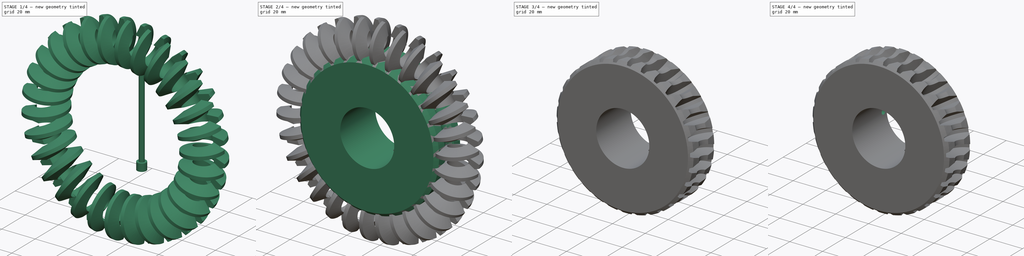
[diagram: build sequence overview — one tinted view per stage of 4, left to right]
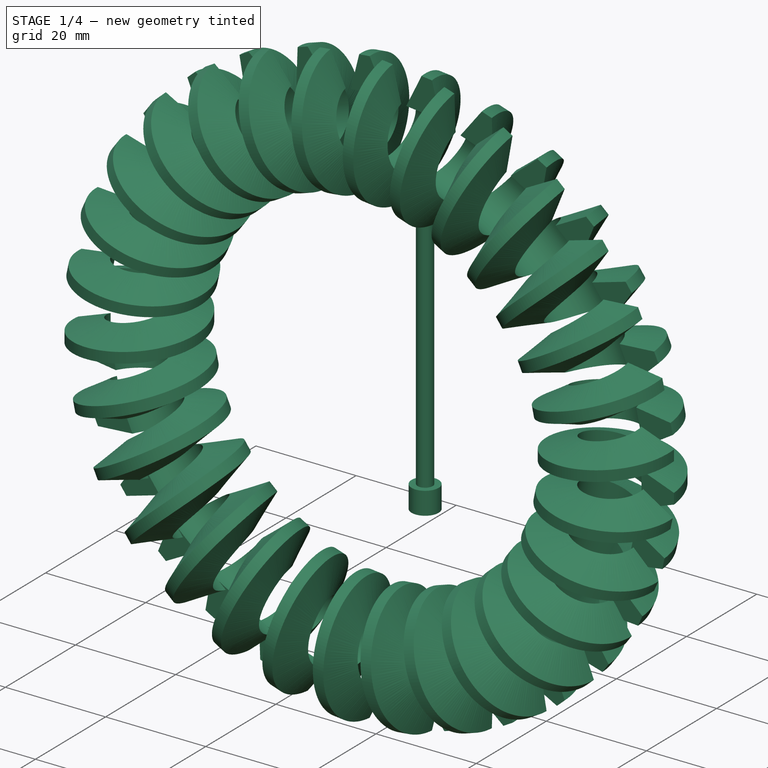
[diagram: stage 1 of 4 — iso view after this stage's code; geometry added in this stage tinted green]
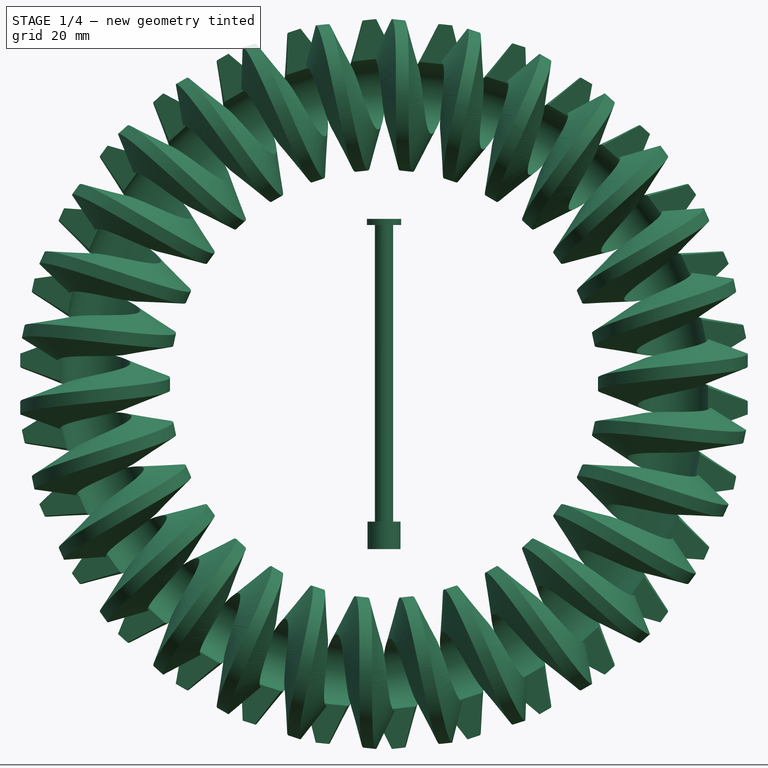
[diagram: stage 1 of 4 — front view after this stage's code; geometry added in this stage tinted green]
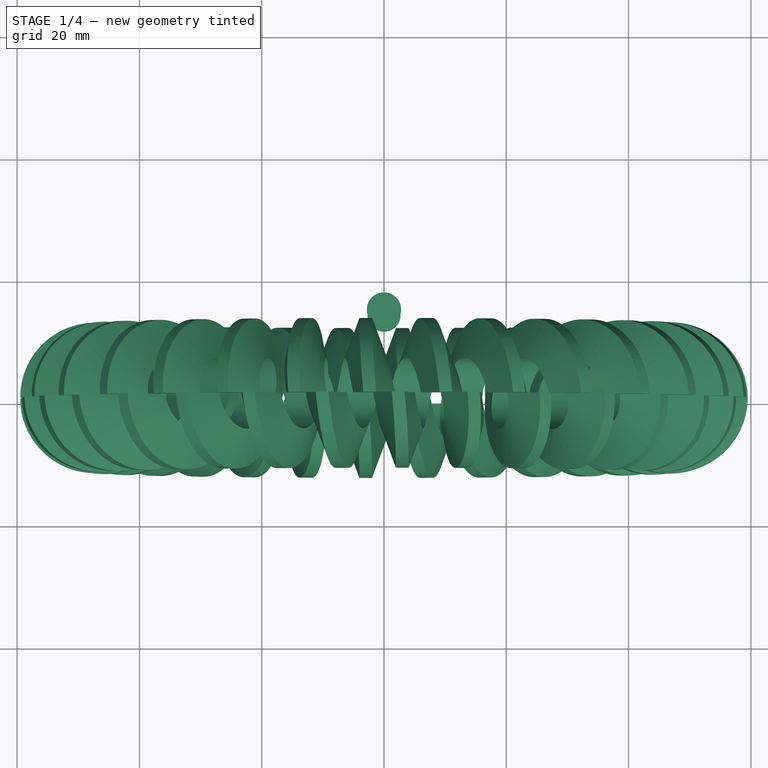
[diagram: stage 1 of 4 — top view after this stage's code; geometry added in this stage tinted green]
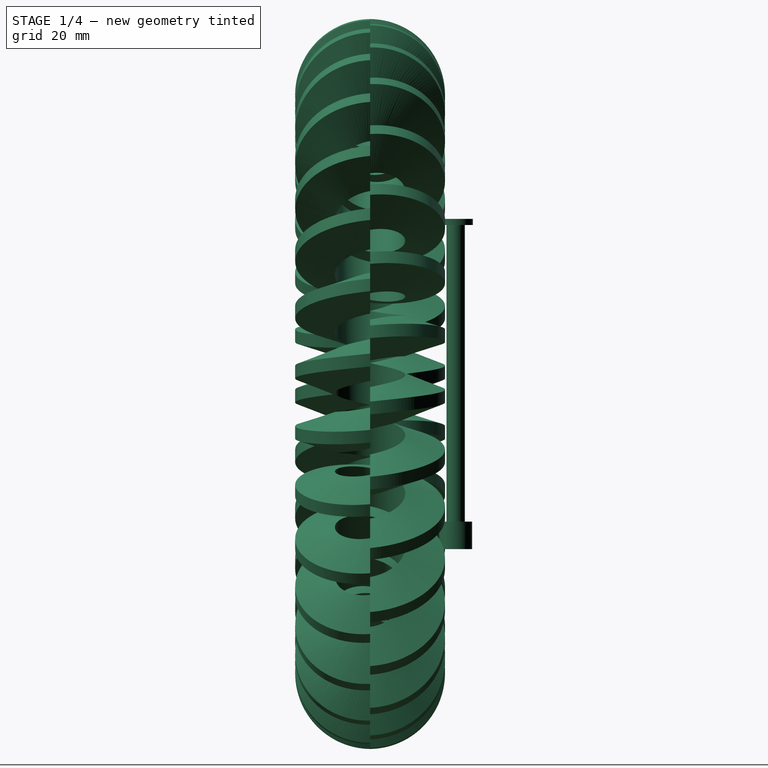
[diagram: stage 1 of 4 — right view after this stage's code; geometry added in this stage tinted green]
FCSTD DOCUMENT  (FreeCAD 0.15R4671 (Git))
Label: axis_gear
License: CC-BY 3.0
LicenseURL: http://creativecommons.org/licenses/by/3.0/
objects: Sketcher::SketchObject×10, PartDesign::Pocket×5, PartDesign::Revolution×2, Part::Cut×2, Part::Helix×1, Part::Sweep×1, PartDesign::Chamfer×1, Part::FeaturePython×1
note: 30 computed .brp shape members not serialized (recipe doc carries the construction recipe); baked Part::Feature solids carry a one-line shape summary decoded from their .brp

FEATURE [Part::Helix] Helix  label="coronaCircle"
  Angle = 0
  Height = 7.85
  LocalCoord = 0
  Pitch = 7.85
  Placement = pos=(47.25,0,-3.925) rot=(0,0,1;0rad)
  Radius = 9.75
  Style = 1
FEATURE [Sketcher::SketchObject] Sketch002  label="helpCircle"
  sketch-geometry (1):
    g0: Circle CenterX=47.25 CenterY=0 CenterZ=0 NormalX=0 NormalY=0 NormalZ=1 Radius=12.25
  constraints (3):
    c: PointOnObject(g0,g-1)
    c: Radius(g0) = 12.25
    c: DistanceX(g-1,g0) = 47.25
FEATURE [Sketcher::SketchObject] Sketch003  label="coronaCutter"
  Placement = pos=(0,0,0) rot=(1,0,0;1.5708rad)
  sketch-geometry (6):
    g0: LineSegment StartX=53 StartY=-7.34338 StartZ=0 EndX=53 EndY=-0.506619 EndZ=0
    g1: LineSegment StartX=53 StartY=-0.506619 StartZ=0 EndX=59.5 EndY=-2.87243 EndZ=0
    g2: LineSegment StartX=59.5 StartY=-2.87243 StartZ=0 EndX=59.5 EndY=-4.97757 EndZ=0
    g3: LineSegment StartX=59.5 StartY=-4.97757 StartZ=0 EndX=53 EndY=-7.34338 EndZ=0
    g4: LineSegment [constr] StartX=53 StartY=-3.925 StartZ=0 EndX=59.5 EndY=-3.925 EndZ=0
    g5: LineSegment [constr] StartX=57 StartY=-1.9625 StartZ=0 EndX=57 EndY=-5.8875 EndZ=0
  constraints (19):
    c: Vertical(g0)
    c: Coincident(g0,g1)
    c: Coincident(g1,g2)
    c: Vertical(g2)
    c: Coincident(g2,g3)
    c: Coincident(g0,g3)
    c: PointOnObject(g4,g0)
    c: PointOnObject(g4,g2)
    c: Symmetric(g0,g0,g4)
    c: Symmetric(g1,g2,g4)
    c: Vertical(g5)
    c: PointOnObject(g5,g3)
    c: PointOnObject(g5,g1)
    c: DistanceX(g-1,g5) = 57
    c: DistanceY(g-1,g4) = -3.925
    c: Angle(g-1,g1) = 2.79253
    c: DistanceY(g5) = -3.925
    c: DistanceX(g5,g1) = 2.5
    c: DistanceX(g0,g5) = 4
FEATURE [Part::Sweep] Sweep  label="cutterSweep"
  Frenet = true
  Sections = -> [Sketch003]
  Solid = true
  Spine = -> Helix [Edge1]
  Transition = 1
FEATURE [Sketcher::SketchObject] Sketch004  label="boltCut"
  Placement = pos=(0,14,0) rot=(-1,0,0;1.5708rad)
  sketch-geometry (8):
    g0: LineSegment StartX=0 StartY=27 StartZ=0 EndX=2.7 EndY=27 EndZ=0
    g1: LineSegment StartX=2.7 StartY=27 StartZ=0 EndX=2.7 EndY=22.5 EndZ=0
    g2: LineSegment StartX=2.7 StartY=22.5 StartZ=0 EndX=1.5 EndY=22.5 EndZ=0
    g3: LineSegment StartX=1.5 StartY=22.5 StartZ=0 EndX=1.5 EndY=-26 EndZ=0
    g4: LineSegment StartX=0 StartY=-27 StartZ=0 EndX=0 EndY=27 EndZ=0
    g5: LineSegment StartX=1.5 StartY=-26 StartZ=0 EndX=2.8057 EndY=-26 EndZ=0
    g6: LineSegment StartX=2.8057 StartY=-26 StartZ=0 EndX=2.8057 EndY=-27 EndZ=0
    g7: LineSegment StartX=2.8057 StartY=-27 StartZ=0 EndX=0 EndY=-27 EndZ=0
  constraints (23):
    c: PointOnObject(g0,g-2)
    c: Horizontal(g0)
    c: Coincident(g0,g1)
    c: Vertical(g1)
    c: Coincident(g1,g2)
    c: Horizontal(g2)
    c: Coincident(g2,g3)
    c: Vertical(g3)
    c: Coincident(g4,g0)
    c: Vertical(g4)
    c: DistanceY(g-1,g0) = 27
    c: Distance(g1) = 4.5
    c: Distance(g0) = 2.7
    c: Coincident(g3,g5)
    c: Horizontal(g5)
    c: Coincident(g5,g6)
    c: Vertical(g6)
    c: Coincident(g6,g7)
    c: PointOnObject(g7,g-2)
    c: Coincident(g4,g7)
    c: Horizontal(g7)
    c: DistanceY(g-1,g3) = -26
    c: DistanceY(g6) = -1
FEATURE [PartDesign::Revolution] Revolution001  label="bolt"
  Angle = 360
  Axis = (0,0,-1)
  Base = (0,14,0)
  Placement = pos=(0,14,0) rot=(-1,0,0;1.5708rad)
  ReferenceAxis = -> Sketch004 [V_Axis]
  Reversed = true
  Sketch = -> Sketch004
FEATURE [Part::FeaturePython] Array  label="cutterArray"  # Draft array (typed FeaturePython)
  Angle = 360
  ArrayType = 1
  Axis = (0,1,0)
  Base = -> Sweep
  Center = (0,0,0)
  IntervalX = (1,0,0)
  IntervalY = (0,1,0)
  IntervalZ = (0,0,1)
  NumberPolar = 30
  NumberX = 2
  NumberY = 2
  NumberZ = 1
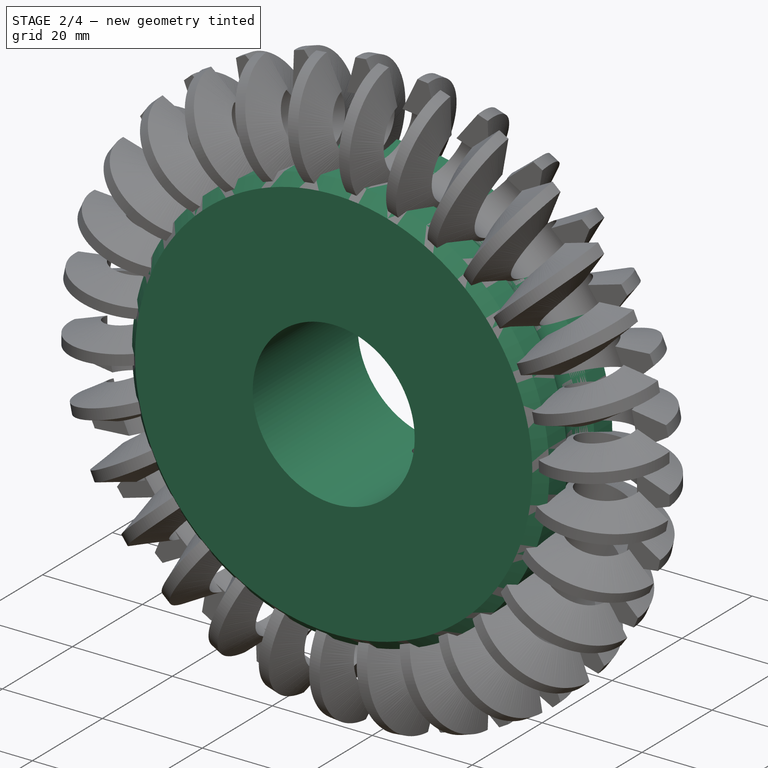
[diagram: stage 2 of 4 — iso view after this stage's code; geometry added in this stage tinted green]
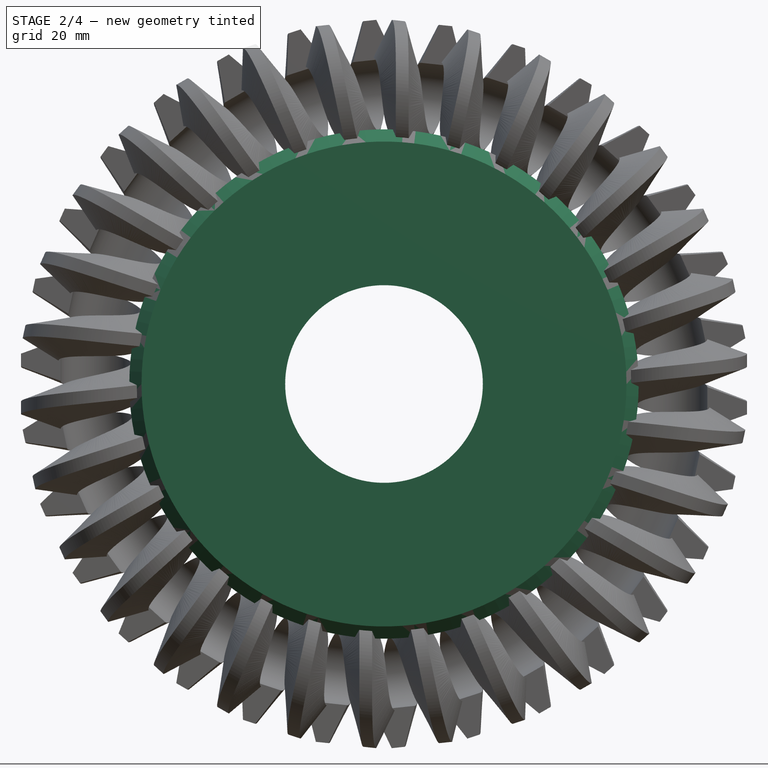
[diagram: stage 2 of 4 — front view after this stage's code; geometry added in this stage tinted green]
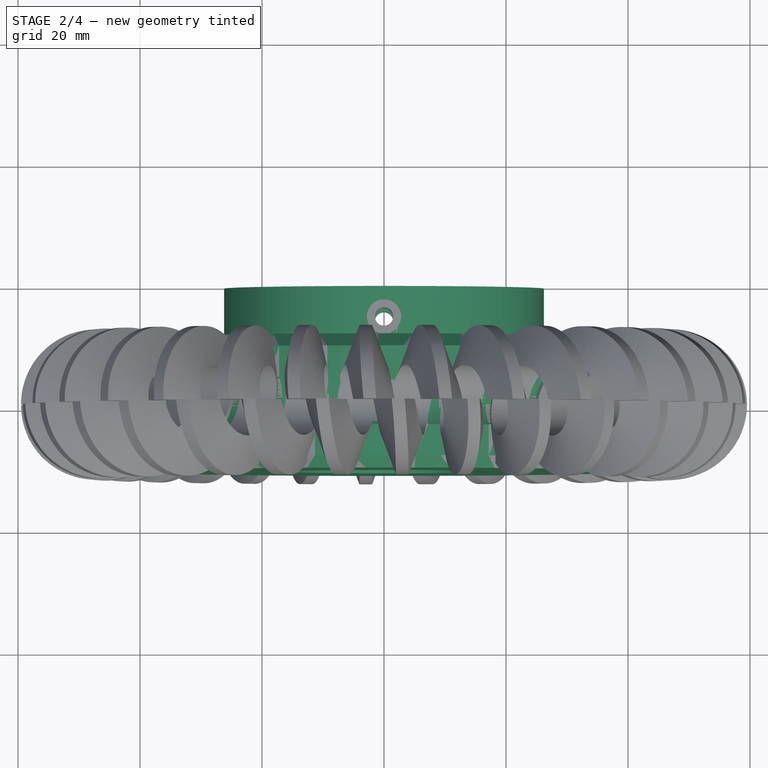
[diagram: stage 2 of 4 — top view after this stage's code; geometry added in this stage tinted green]
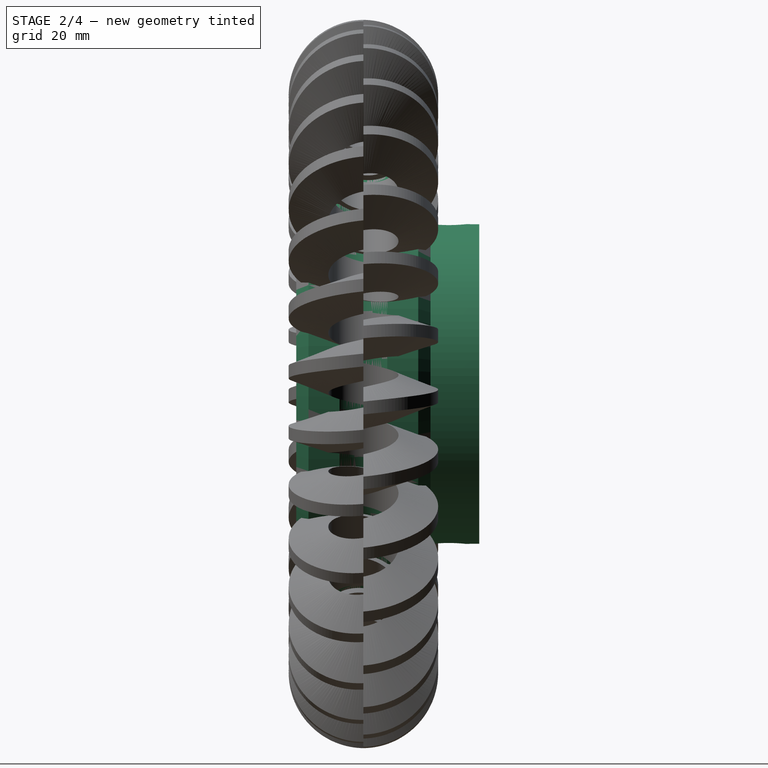
[diagram: stage 2 of 4 — right view after this stage's code; geometry added in this stage tinted green]
FEATURE [Sketcher::SketchObject] Sketch  label="coronaProfile"
  sketch-geometry (8):
    g0: LineSegment StartX=16.2 StartY=-11 StartZ=0 EndX=41.75 EndY=-11 EndZ=0
    g1: LineSegment StartX=41.75 StartY=11 StartZ=0 EndX=26.2 EndY=11 EndZ=0
    g2: LineSegment StartX=26.2 StartY=11 StartZ=0 EndX=26.2 EndY=19 EndZ=0
    g3: LineSegment StartX=26.2 StartY=19 StartZ=0 EndX=16.2 EndY=19 EndZ=0
    g4: LineSegment StartX=16.2 StartY=19 StartZ=0 EndX=16.2 EndY=-11 EndZ=0
    g5: ArcOfCircle CenterX=47.25 CenterY=0 CenterZ=0 NormalX=0 NormalY=0 NormalZ=1 Radius=6.75 StartAngle=2.52321 EndAngle=3.75998
    g6: LineSegment StartX=41.75 StartY=11 StartZ=0 EndX=41.75 EndY=3.91312 EndZ=0
    g7: LineSegment StartX=41.75 StartY=-3.91312 StartZ=0 EndX=41.75 EndY=-11 EndZ=0
  constraints (24):
    c: Horizontal(g0)
    c: Horizontal(g1)
    c: Vertical(g2)
    c: Coincident(g2,g3)
    c: Coincident(g3,g4)
    c: Coincident(g4,g0)
    c: Vertical(g4)
    c: Horizontal(g3)
    c: DistanceX(g-1,g3) = 16.2
    c: DistanceX(g3) = -10
    c: Symmetric(g1,g0,g-1)
    c: PointOnObject(g5,g-1)
    c: Coincident(g6,g1)
    c: Coincident(g6,g5)
    c: Vertical(g6)
    c: Coincident(g7,g5)
    c: Coincident(g7,g0)
    c: Vertical(g7)
    c: DistanceX(g-1,g5) = 47.25
    c: DistanceY(g1,g0) = -22
    c: DistanceY(g4) = -30
    c: Coincident(g1,g2)
    c: DistanceX(g-1,g0) = 41.75
    c: Radius(g5) = 6.75
FEATURE [Sketcher::SketchObject] Sketch001
  sketch-geometry (11):
    g0: LineSegment StartX=0 StartY=12.9411 StartZ=0 EndX=47.25 EndY=12.9411 EndZ=0
    g1: LineSegment StartX=47.25 StartY=12.9411 StartZ=0 EndX=47.25 EndY=-12.9411 EndZ=0
    g2: LineSegment StartX=47.25 StartY=-12.9411 StartZ=0 EndX=0 EndY=-12.9411 EndZ=0
    g3: LineSegment StartX=0 StartY=-12.9411 StartZ=0 EndX=0 EndY=12.9411 EndZ=0
    g4: Circle CenterX=57 CenterY=0 CenterZ=0 NormalX=0 NormalY=0 NormalZ=1 Radius=9.75
    g5: Circle [constr] CenterX=57 CenterY=0 CenterZ=0 NormalX=0 NormalY=0 NormalZ=1 Radius=5.97
    g6: Circle [constr] CenterX=57 CenterY=0 CenterZ=0 NormalX=0 NormalY=0 NormalZ=1 Radius=12.9
    g7: LineSegment [constr] StartX=44.1 StartY=12.9411 StartZ=0 EndX=44.1 EndY=-12.9411 EndZ=0
    g8: LineSegment [constr] StartX=47.25 StartY=12.9411 StartZ=0 EndX=51.03 EndY=12.9411 EndZ=0
    g9: LineSegment [constr] StartX=51.03 StartY=12.9411 StartZ=0 EndX=51.03 EndY=-12.9411 EndZ=0
    g10: LineSegment [constr] StartX=51.03 StartY=-12.9411 StartZ=0 EndX=47.25 EndY=-12.9411 EndZ=0
  constraints (30):
    c: Coincident(g0,g1)
    c: Coincident(g1,g2)
    c: Coincident(g2,g3)
    c: Coincident(g3,g0)
    c: Horizontal(g0)
    c: Horizontal(g2)
    c: Vertical(g1)
    c: Vertical(g3)
    c: Symmetric(g0,g2,g-1)
    c: PointOnObject(g4,g-1)
    c: DistanceX(g-1,g4) = 57
    c: Radius(g4) = 9.75
    c: PointOnObject(g-1,g3)
    c: Coincident(g5,g4)
    c: Radius(g5) = 5.97
    c: Coincident(g6,g4)
    c: Radius(g6) = 12.9
    c: DistanceX(g2) = -47.25
    c: PointOnObject(g7,g0)
    c: PointOnObject(g7,g2)
    c: Vertical(g7)
    c: Tangent(g6,g7)
    c: Coincident(g0,g8)
    c: Horizontal(g8)
    c: Coincident(g8,g9)
    c: Vertical(g9)
    c: Coincident(g9,g10)
    c: Coincident(g10,g1)
    c: Horizontal(g10)
    c: Tangent(g9,g5)
FEATURE [PartDesign::Revolution] Revolution  label="CoronaBody"
  Angle = 360
  Axis = (0,1,0)
  Base = (0,0,0)
  ReferenceAxis = -> Sketch [V_Axis]
  Reversed = true
  Sketch = -> Sketch
FEATURE [PartDesign::Chamfer] Chamfer
  Base = -> Revolution [Edge8,Edge1]
  Size = 2
FEATURE [Part::Cut] Cut  label="boltCut001"
  Base = -> Chamfer
  Tool = -> Revolution001
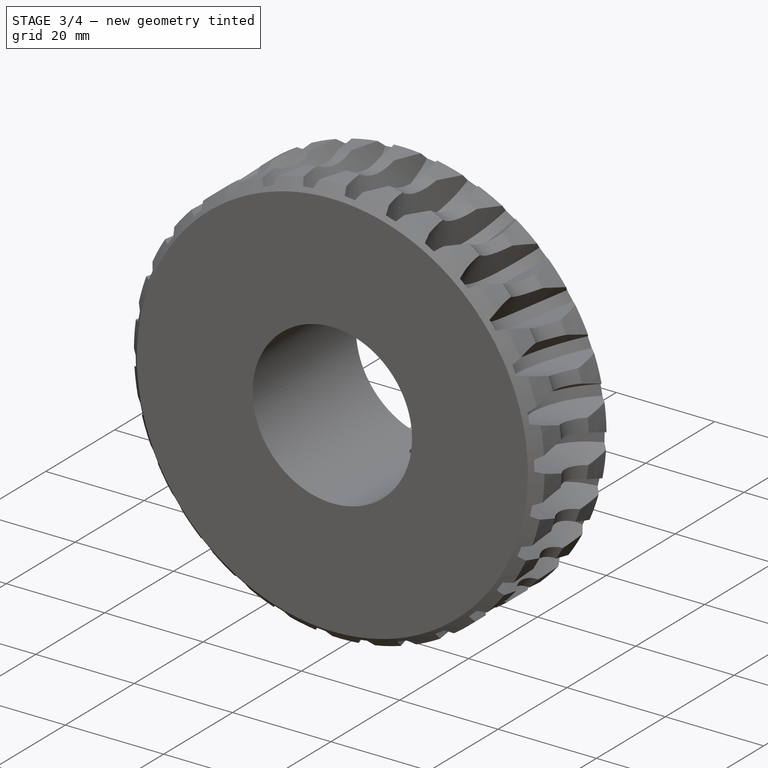
[diagram: stage 3 of 4 — iso view after this stage's code; geometry added in this stage tinted green]
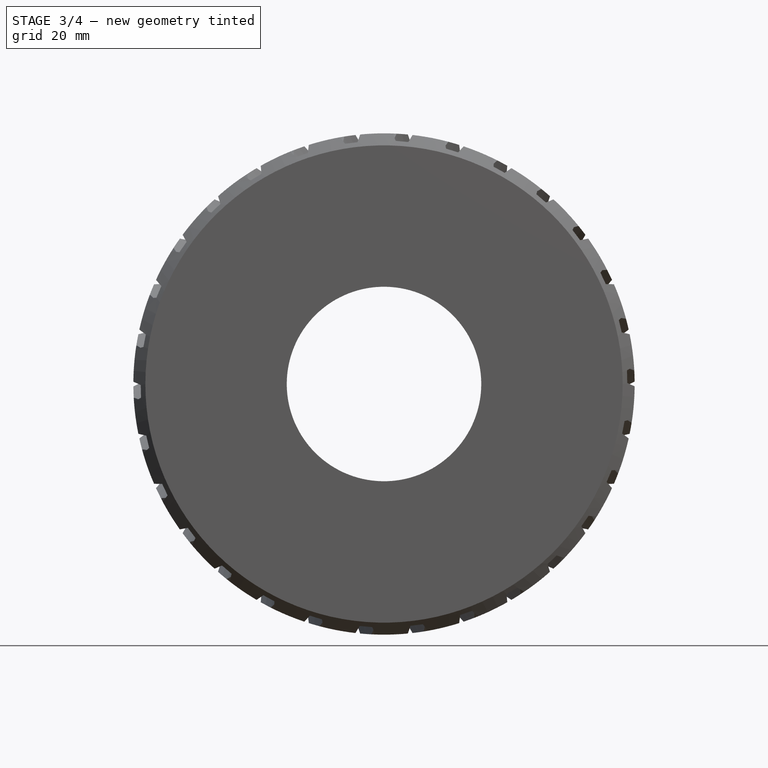
[diagram: stage 3 of 4 — front view after this stage's code; geometry added in this stage tinted green]
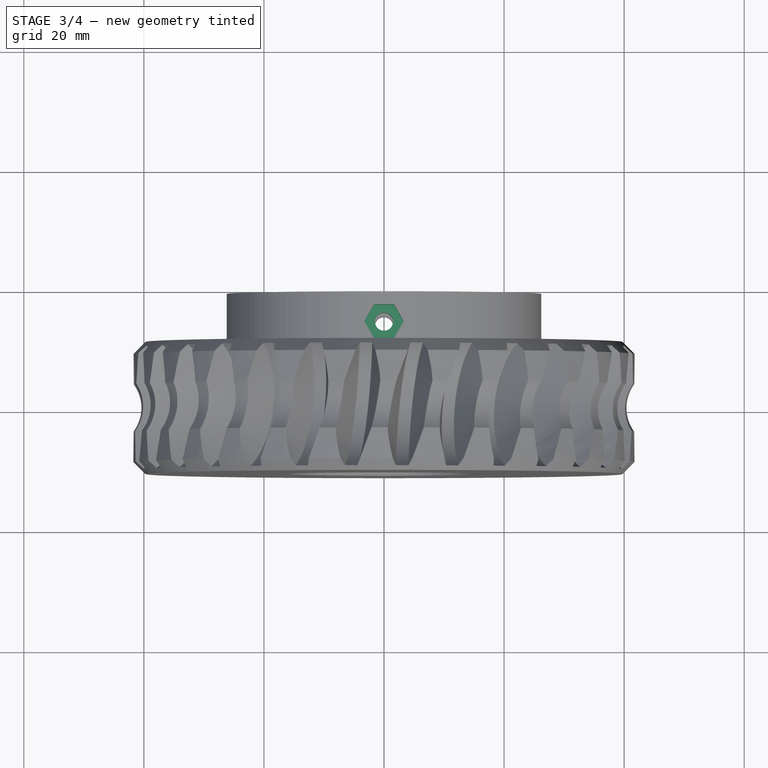
[diagram: stage 3 of 4 — top view after this stage's code; geometry added in this stage tinted green]
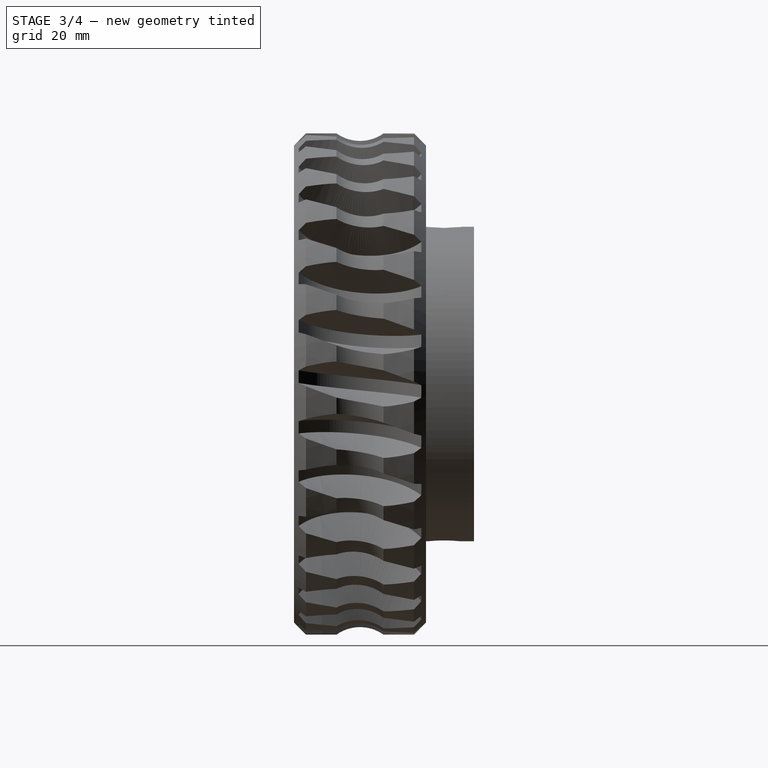
[diagram: stage 3 of 4 — right view after this stage's code; geometry added in this stage tinted green]
FEATURE [Sketcher::SketchObject] Sketch005  label="nut"
  ExternalGeometry = -> [Cut]
  Placement = pos=(0,0,26) rot=(0,0,1;0rad)
  Support = -> Cut [Face11]
  sketch-geometry (7):
    g0: Circle [constr] CenterX=0 CenterY=14 CenterZ=0 NormalX=0 NormalY=0 NormalZ=1 Radius=2.85
    g1: LineSegment StartX=-1.64545 StartY=16.85 StartZ=0 EndX=1.64545 EndY=16.85 EndZ=0
    g2: LineSegment StartX=1.64545 StartY=16.85 StartZ=0 EndX=3.2909 EndY=14 EndZ=0
    g3: LineSegment StartX=3.2909 StartY=14 StartZ=0 EndX=1.64545 EndY=11.15 EndZ=0
    g4: LineSegment StartX=1.64545 StartY=11.15 StartZ=0 EndX=-1.64545 EndY=11.15 EndZ=0
    g5: LineSegment StartX=-1.64545 StartY=11.15 StartZ=0 EndX=-3.2909 EndY=14 EndZ=0
    g6: LineSegment StartX=-3.2909 StartY=14 StartZ=0 EndX=-1.64545 EndY=16.85 EndZ=0
  constraints (21):
    c: Radius(g0) = 2.85
    c: Coincident(g-3,g0)
    c: Horizontal(g1)
    c: Tangent(g1,g0)
    c: Coincident(g1,g2)
    c: Tangent(g2,g0)
    c: Coincident(g2,g3)
    c: Tangent(g3,g0)
    c: Coincident(g3,g4)
    c: Horizontal(g4)
    c: Tangent(g4,g0)
    c: Coincident(g4,g5)
    c: Tangent(g5,g0)
    c: Coincident(g5,g6)
    c: Coincident(g6,g1)
    c: Tangent(g6,g0)
    c: Equal(g1,g2)
    c: Equal(g2,g3)
    c: Equal(g3,g4)
    c: Equal(g4,g5)
    c: Equal(g5,g6)
FEATURE [PartDesign::Pocket] Pocket  label="nutPocket"
  Length = 8
  Midplane = true
  Sketch = -> Sketch005
  Type = 0
FEATURE [Part::Cut] Cut001  label="finelCut"
  Base = -> Pocket
  Tool = -> Array
FEATURE [Sketcher::SketchObject] Sketch006  label="M3PocketSketch"
  Placement = pos=(0,19,0) rot=(0,0.707107,0.707107;3.14159rad)
  Support = -> Cut001 [Face124]
  sketch-geometry (16):
    g0: LineSegment [constr] StartX=0 StartY=0 StartZ=0 EndX=-10 EndY=17.3205 EndZ=0
    g1: LineSegment [constr] StartX=0 StartY=0 StartZ=0 EndX=20 EndY=0 EndZ=0
    g2: LineSegment [constr] StartX=0 StartY=0 StartZ=0 EndX=-10 EndY=-17.3205 EndZ=0
    g3: Circle [constr] CenterX=0 CenterY=0 CenterZ=0 NormalX=0 NormalY=0 NormalZ=1 Radius=20
    g4: LineSegment StartX=-12.5115 StartY=15.8705 StartZ=0 EndX=-7.48853 EndY=18.7705 EndZ=0
    g5: LineSegment StartX=-7.48853 StartY=18.7705 StartZ=0 EndX=-8.73853 EndY=20.9356 EndZ=0
    g6: LineSegment StartX=-8.73853 StartY=20.9356 StartZ=0 EndX=-13.7615 EndY=18.0356 EndZ=0
    g7: LineSegment StartX=-13.7615 StartY=18.0356 StartZ=0 EndX=-12.5115 EndY=15.8705 EndZ=0
    g8: LineSegment StartX=-12.5115 StartY=-15.8705 StartZ=0 EndX=-7.48853 EndY=-18.7705 EndZ=0
    g9: LineSegment StartX=-7.48853 StartY=-18.7705 StartZ=0 EndX=-8.73853 EndY=-20.9356 EndZ=0
    g10: LineSegment StartX=-8.73853 StartY=-20.9356 StartZ=0 EndX=-13.7615 EndY=-18.0356 EndZ=0
    g11: LineSegment StartX=-13.7615 StartY=-18.0356 StartZ=0 EndX=-12.5115 EndY=-15.8705 EndZ=0
    g12: LineSegment StartX=20 StartY=2.9 StartZ=0 EndX=22.5 EndY=2.9 EndZ=0
    g13: LineSegment StartX=22.5 StartY=2.9 StartZ=0 EndX=22.5 EndY=-2.9 EndZ=0
    g14: LineSegment StartX=22.5 StartY=-2.9 StartZ=0 EndX=20 EndY=-2.9 EndZ=0
    g15: LineSegment StartX=20 StartY=-2.9 StartZ=0 EndX=20 EndY=2.9 EndZ=0
  constraints (47):
    c: Coincident(g0,g-1)
    c: Coincident(g1,g-1)
    c: Horizontal(g1)
    c: Coincident(g2,g-1)
    c: Coincident(g3,g-1)
    c: PointOnObject(g1,g3)
    c: PointOnObject(g0,g3)
    c: PointOnObject(g2,g3)
    c: Symmetric(g0,g2,g-1)
    c: Radius(g3) = 20
    c: Angle(g-1,g0) = 2.0944
    c: Coincident(g4,g5)
    c: Coincident(g5,g6)
    c: Coincident(g6,g7)
    c: Coincident(g7,g4)
    c: Perpendicular(g0,g4)
    c: Perpendicular(g5,g4)
    c: Perpendicular(g7,g4)
    c: Parallel(g6,g4)
    c: Symmetric(g6,g5,g0)
    c: Coincident(g8,g9)
    c: Coincident(g9,g10)
    c: Coincident(g10,g11)
    c: Coincident(g11,g8)
    c: Perpendicular(g2,g8)
    c: Perpendicular(g8,g11)
    c: Perpendicular(g9,g8)
    c: Parallel(g8,g10)
    c: Symmetric(g8,g8,g2)
    c: Coincident(g12,g13)
    c: Coincident(g13,g14)
    c: Coincident(g14,g15)
    c: Coincident(g15,g12)
    c: Horizontal(g12)
    c: Horizontal(g14)
    c: Vertical(g13)
    c: Vertical(g15)
    c: Symmetric(g12,g13,g1)
    c: Equal(g15,g10)
    c: Equal(g10,g4)
    c: DistanceY(g12,g13) = -5.8
    c: Equal(g14,g9)
    c: Equal(g9,g7)
    c: DistanceX(g12,g12) = -2.5
    c: Tangent(g15,g3)
    c: Tangent(g8,g3)
    c: Tangent(g4,g3)
FEATURE [PartDesign::Pocket] Pocket001  label="M3Pocket"
  Length = 5.8
  Sketch = -> Sketch006
  Type = 0
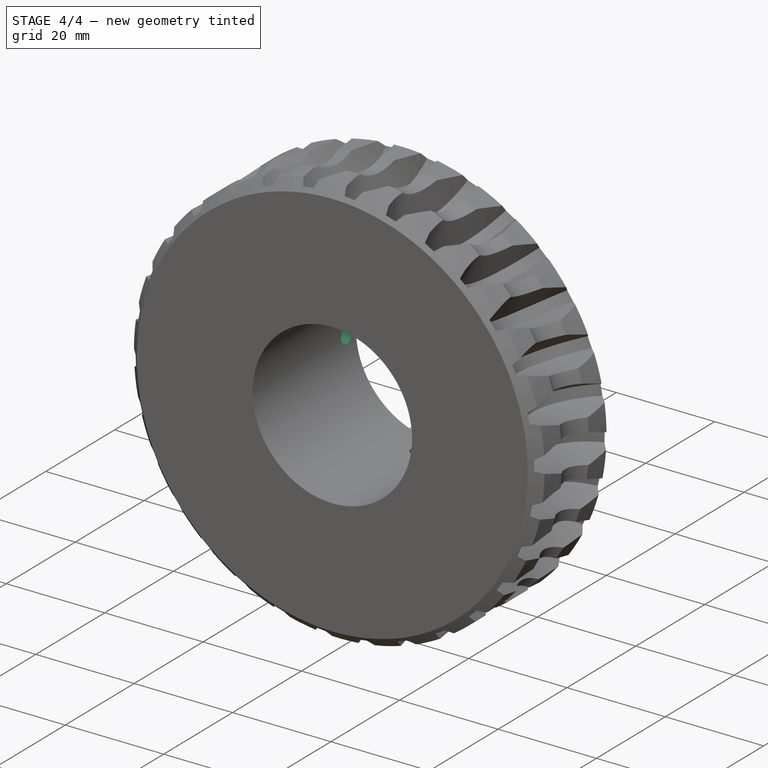
[diagram: stage 4 of 4 — iso view after this stage's code; geometry added in this stage tinted green]
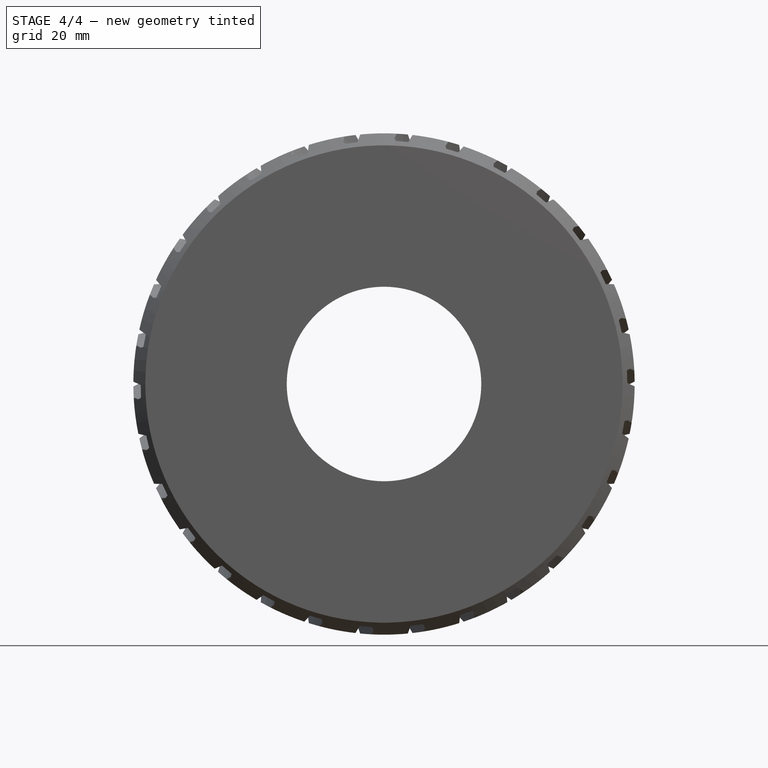
[diagram: stage 4 of 4 — front view after this stage's code; geometry added in this stage tinted green]
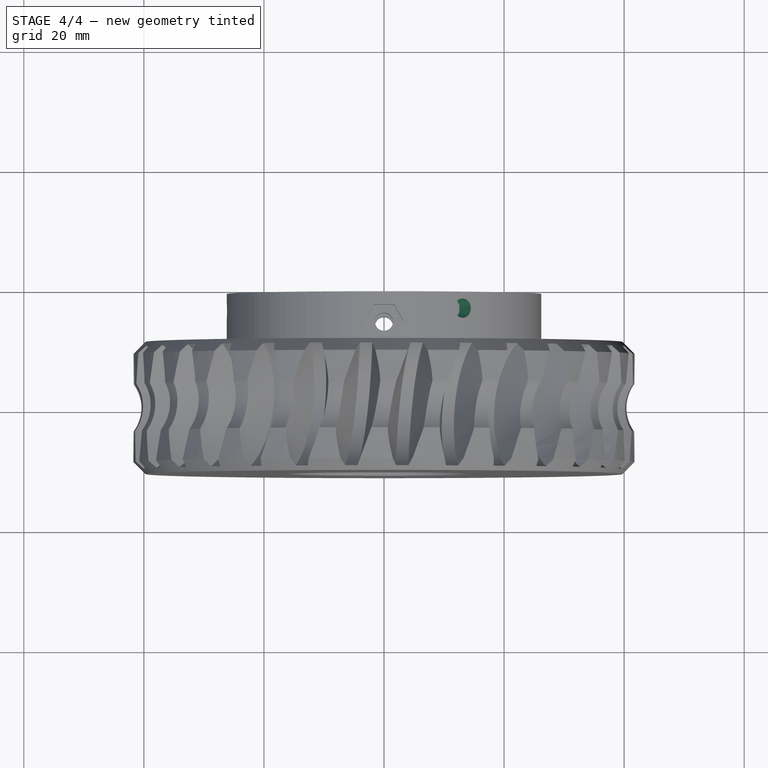
[diagram: stage 4 of 4 — top view after this stage's code; geometry added in this stage tinted green]
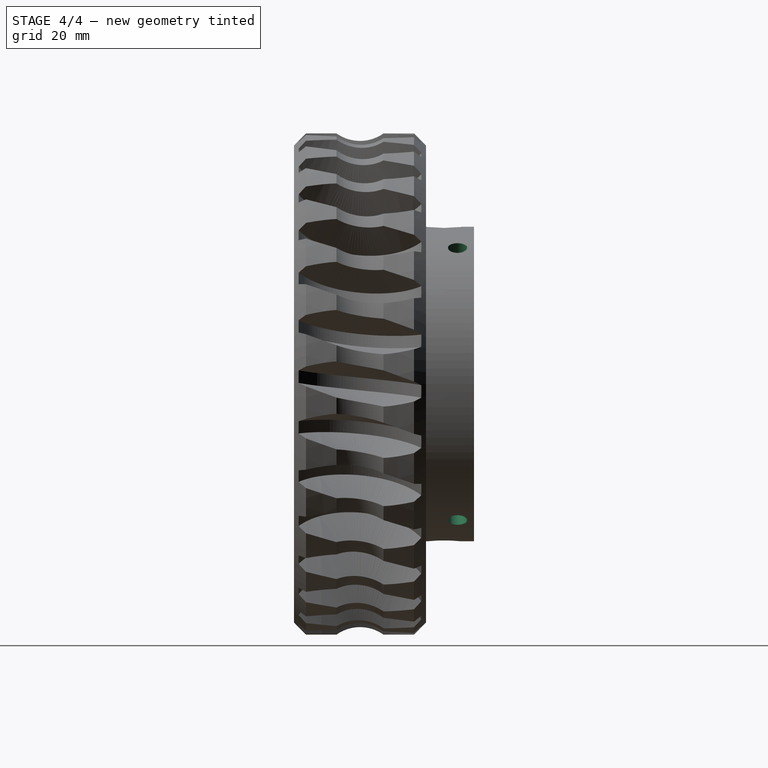
[diagram: stage 4 of 4 — right view after this stage's code; geometry added in this stage tinted green]
FEATURE [Sketcher::SketchObject] Sketch007
  ExternalGeometry = -> [Pocket001]
  Placement = pos=(11.25,0,19.4856) rot=(0.965926,0,-0.258819;3.14159rad)
  Support = -> Pocket001 [Face201]
  sketch-geometry (1):
    g0: Circle CenterX=0 CenterY=-16.25 CenterZ=0 NormalX=0 NormalY=0 NormalZ=1 Radius=1.6
  constraints (3):
    c: PointOnObject(g0,g-2)
    c: Radius(g0) = 1.6
    c: DistanceY(g0,g-3) = -2.75
FEATURE [PartDesign::Pocket] Pocket002  label="M3Hole1"
  Length = 15
  Midplane = true
  Sketch = -> Sketch007
  Type = 0
FEATURE [Sketcher::SketchObject] Sketch008
  ExternalGeometry = -> [Pocket002]
  Placement = pos=(10,0,-17.3205) rot=(0.965926,0,0.258819;3.14159rad)
  Support = -> Pocket002 [Face195]
  sketch-geometry (1):
    g0: Circle CenterX=0 CenterY=-16.25 CenterZ=0 NormalX=0 NormalY=0 NormalZ=1 Radius=1.6
  constraints (3):
    c: PointOnObject(g0,g-2)
    c: Radius(g0) = 1.6
    c: DistanceY(g0,g-3) = -2.75
FEATURE [PartDesign::Pocket] Pocket003  label="M3Hole2"
  Length = 15
  Midplane = true
  Sketch = -> Sketch008
  Type = 0
FEATURE [Sketcher::SketchObject] Sketch009
  ExternalGeometry = -> [Pocket003]
  Placement = pos=(-22.5,0,0) rot=(0.57735,0.57735,0.57735;2.0944rad)
  Support = -> Pocket003 [Face202]
  sketch-geometry (1):
    g0: Circle CenterX=16.25 CenterY=0 CenterZ=0 NormalX=0 NormalY=0 NormalZ=1 Radius=1.6
  constraints (3):
    c: PointOnObject(g0,g-1)
    c: Radius(g0) = 1.6
    c: DistanceX(g0,g-3) = 2.75
FEATURE [PartDesign::Pocket] Pocket004  label="M3Hole3"
  Length = 15
  Midplane = true
  Sketch = -> Sketch009
  Type = 0
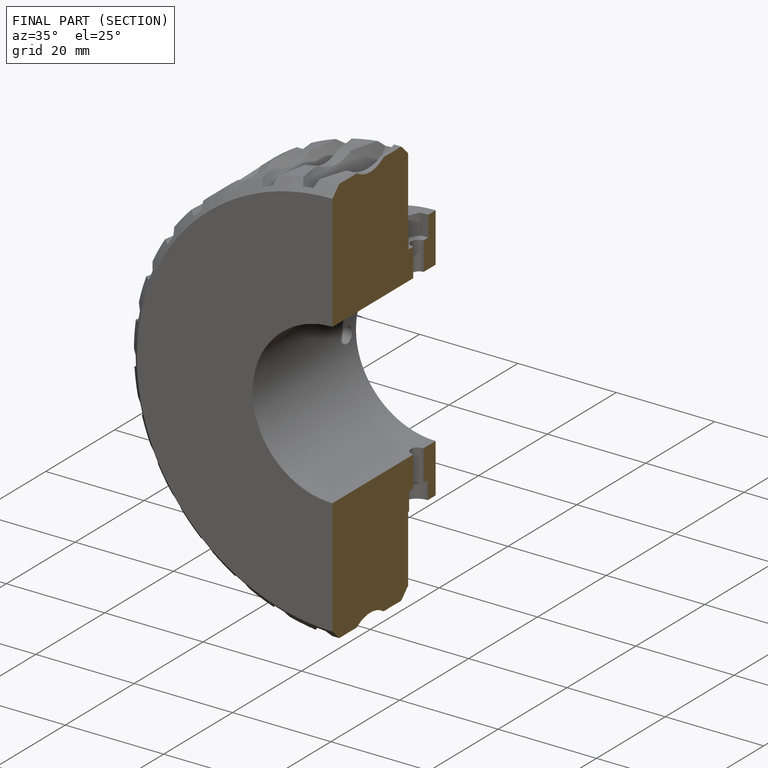
[diagram: finished part — half-section view (interior)]
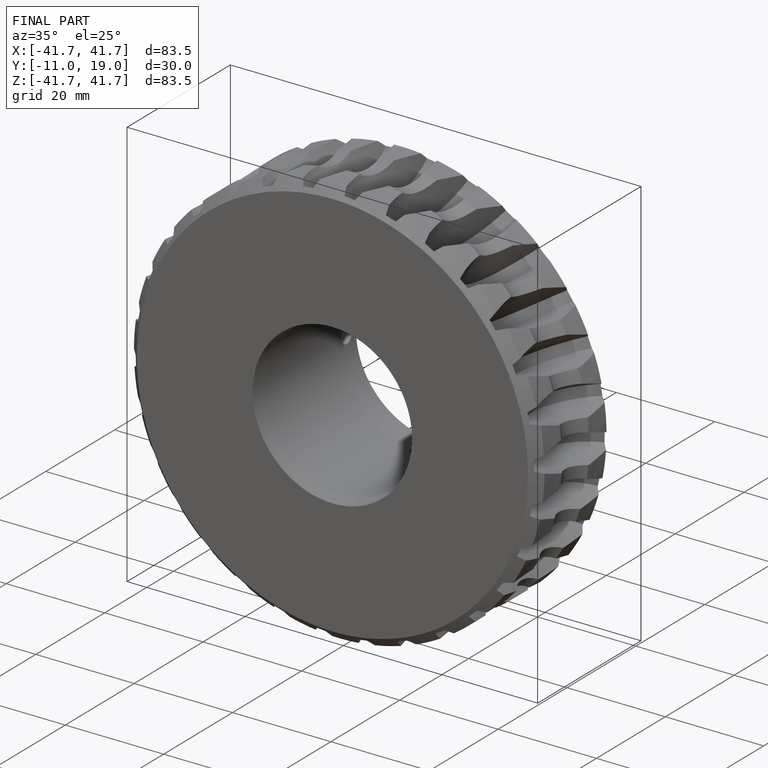
[diagram: finished part — iso view with bounding-box wireframe]
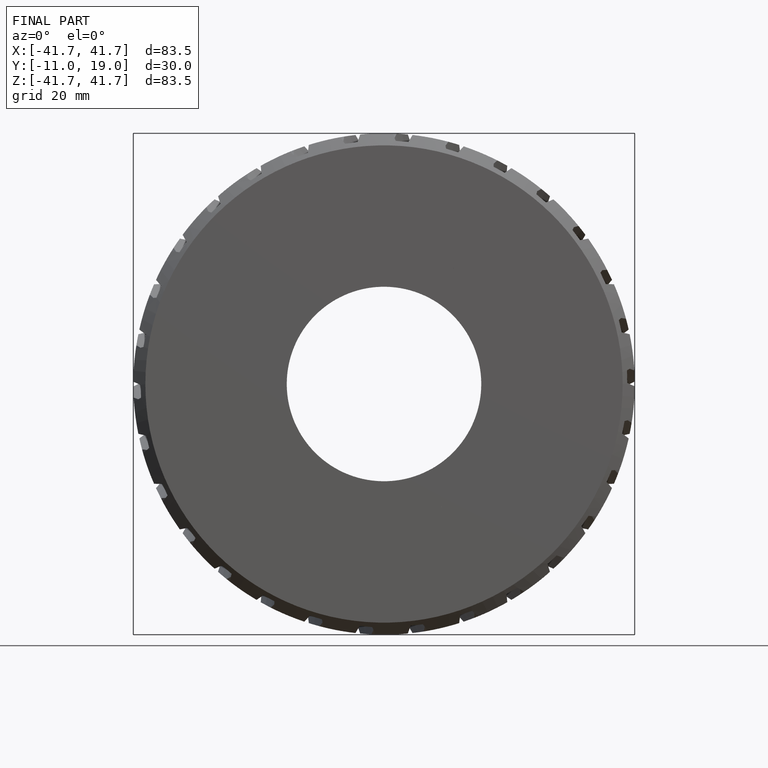
[diagram: finished part — front view with bounding-box wireframe]
